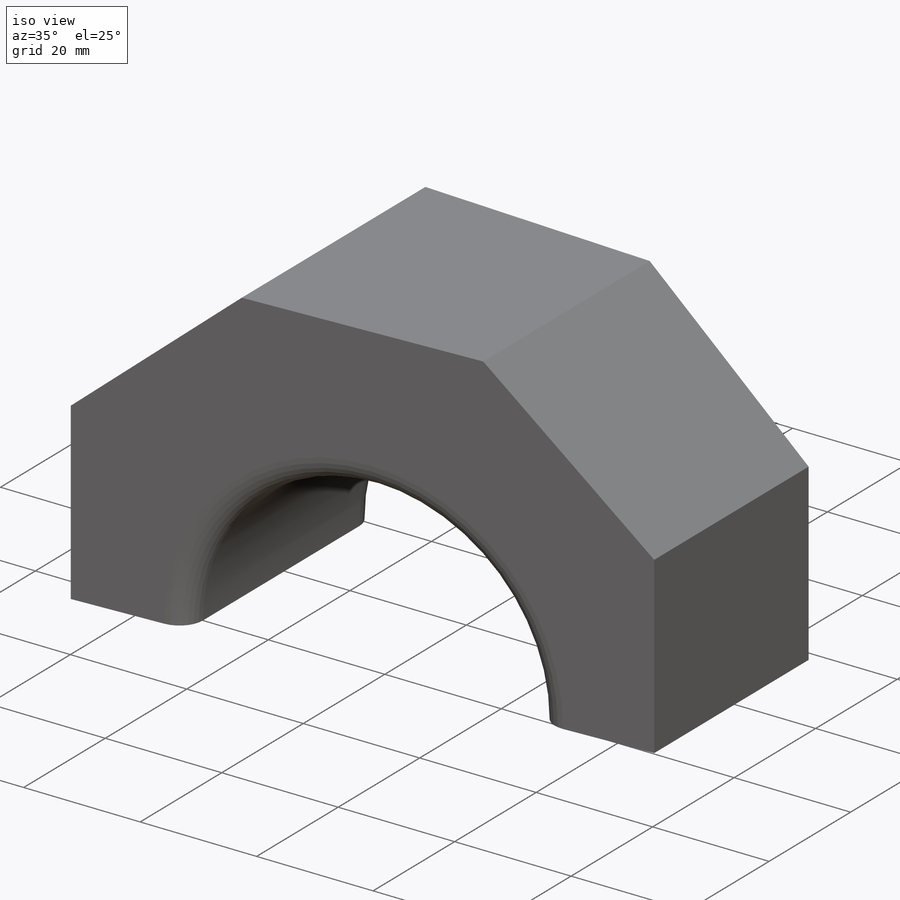
[diagram: iso view]
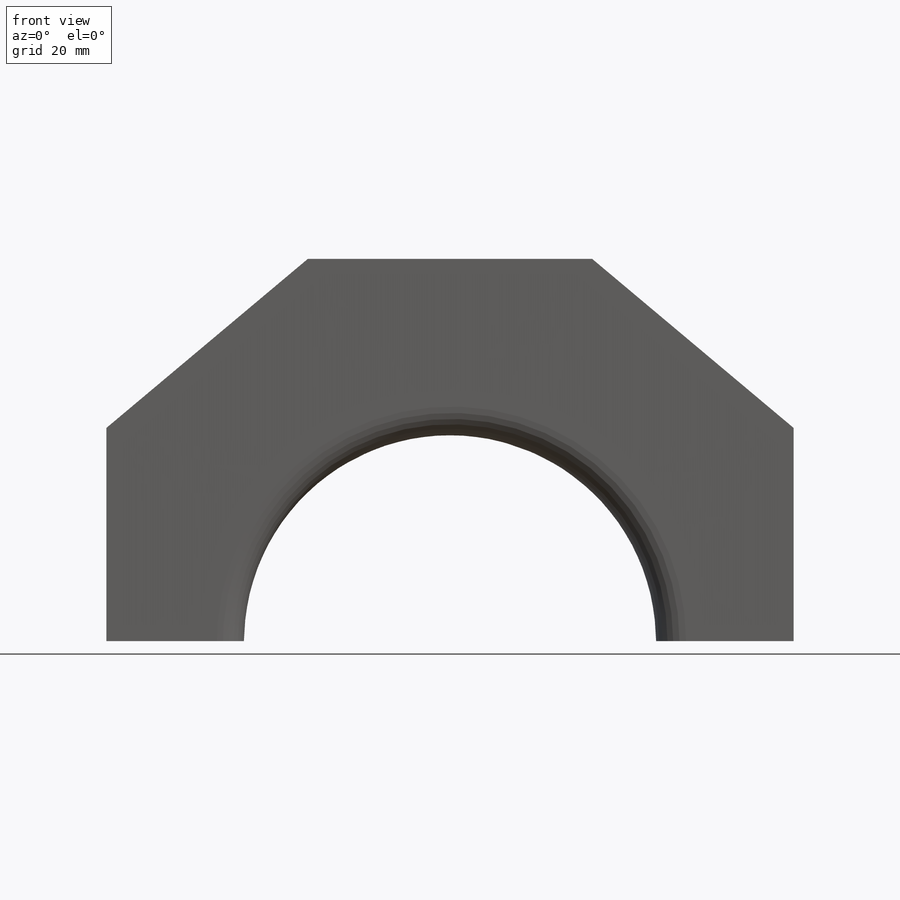
[diagram: front view]
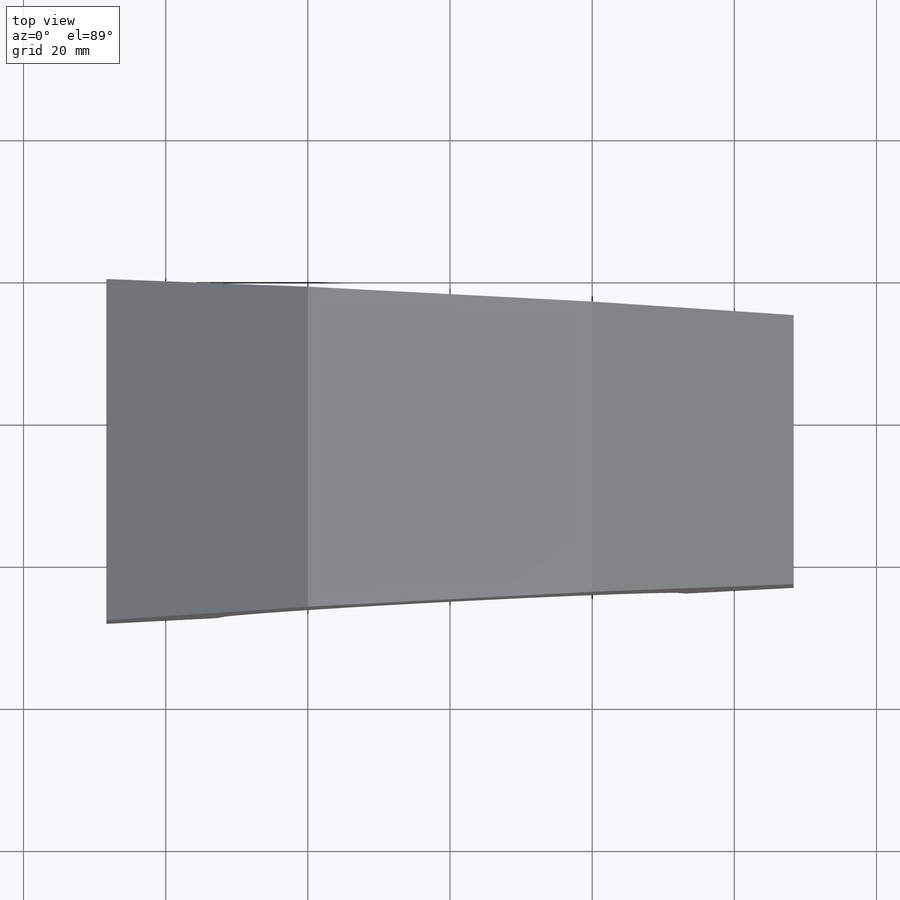
[diagram: top view]
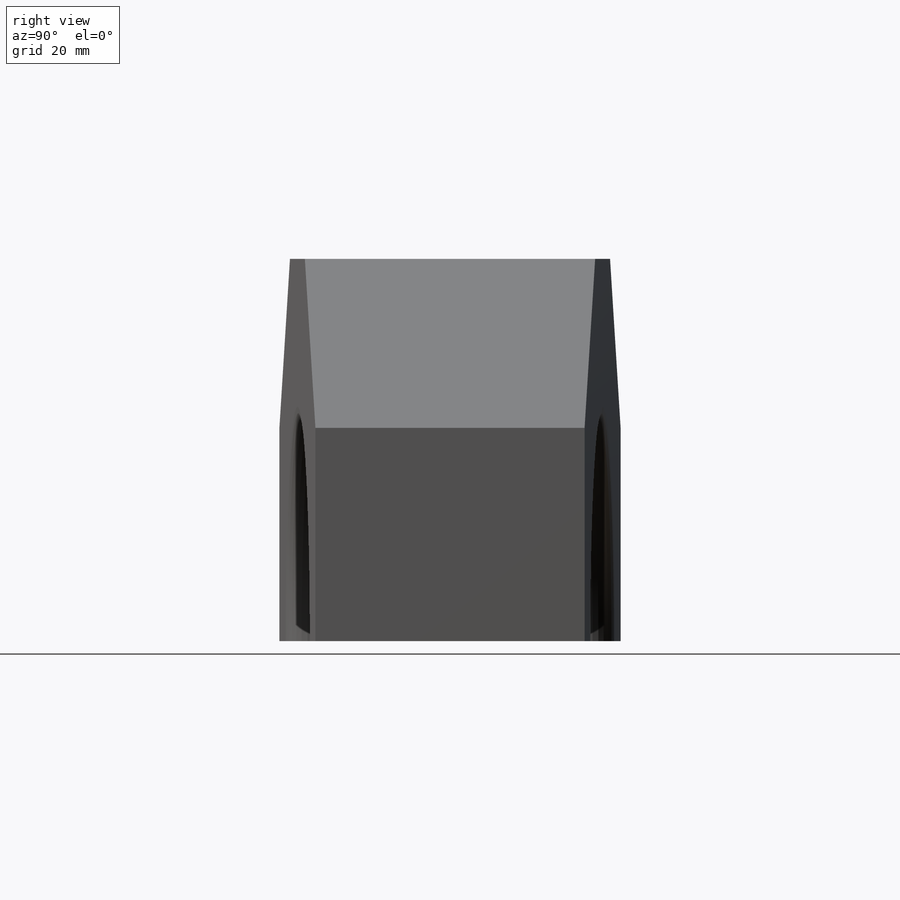
[diagram: right view]
SOLIDWORKS PART (.sldprt)
format: sldprt  version: not decoded by parser v0  size: 249,344 bytes
history: native  units: mm
features: sketch x8, plane x4, material x1, extrude x1, cut_extrude x1, helix x1, surface_op x1, fillet x1 (+9 scaffold rows collapsed)
feature tree (27):
  scaffold x9  (default folders/planes/origin — collapsed)
  material  "Material <nicht festgelegt>"
  plane  "Ebene vorne"
  plane  "Ebene oben"
  plane  "Ebene rechts"
  sketch  "Skizze1"  dims[c1.D5=59.0mm c1.D6=59.0mm c2.D5=30.0mm c2.D7=60.0mm c2.D1=~36.437548mm c3.D1=40.0deg c3.D2=30.0mm c3.D3=40.0mm c3.D4=~26.666667mm c3.D6=~26.666667mm c4.D4=~96.666667mm c4.D6=~13.333333mm c4.D7=~96.666667mm c5.D4=35.0mm c5.D7=1.0mm]
  extrude  "Aufsatz-Linear austragen1"  Depth=48mm
  sketch  "Skizze2"  dims[c1.D1=~161.111111mm c2.D1=87.0deg c3.D1=~96.666667mm c4.D1=87.0deg]
  cut_extrude  "Schnitt-Linear austragen1"  [1 undecoded]
  sketch  "Skizze3"  dims[D1=1.0mm]
  sketch  "Skizze4"
  sketch  "Skizze5"
  helix  "Spirale/Helix1"  Pitch=10mm
  sketch  "Skizze6"
  surface_op  "Oberfläche-Linear austragen1"
  sketch  "3D-Skizze1"
  plane  "Ebene1"
  sketch  "Skizze7"
  fillet  "Verrundung1"  Radius=4mm
decode coverage: 6 of 13 modeling features carry decoded parameters
note: ~ marks probable driven/reference dimensions
note: 1 parameter value undecoded
note: suppression state not decoded; provenance and decode notes live in map.json
